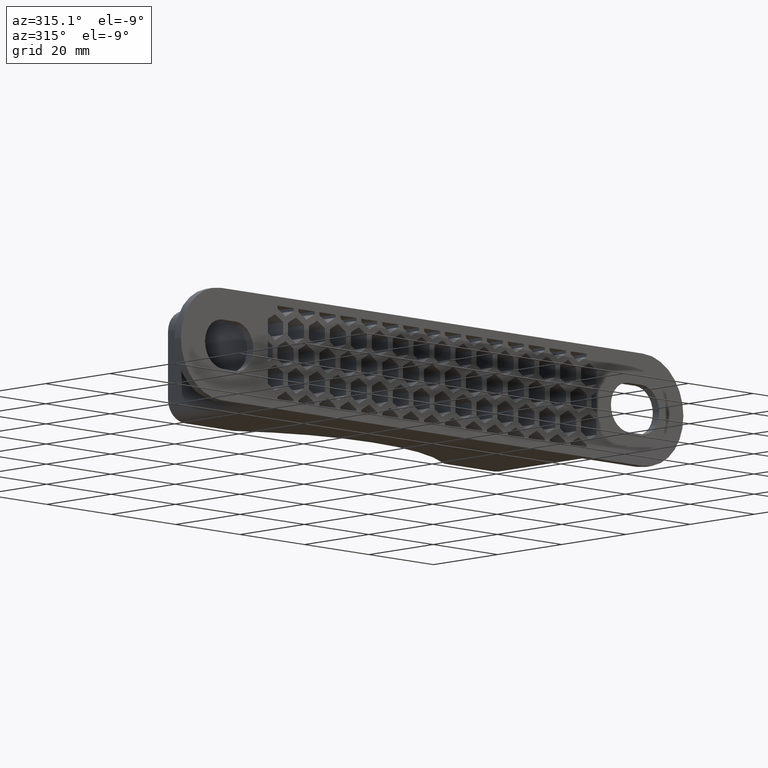
[diagram: clean part render]
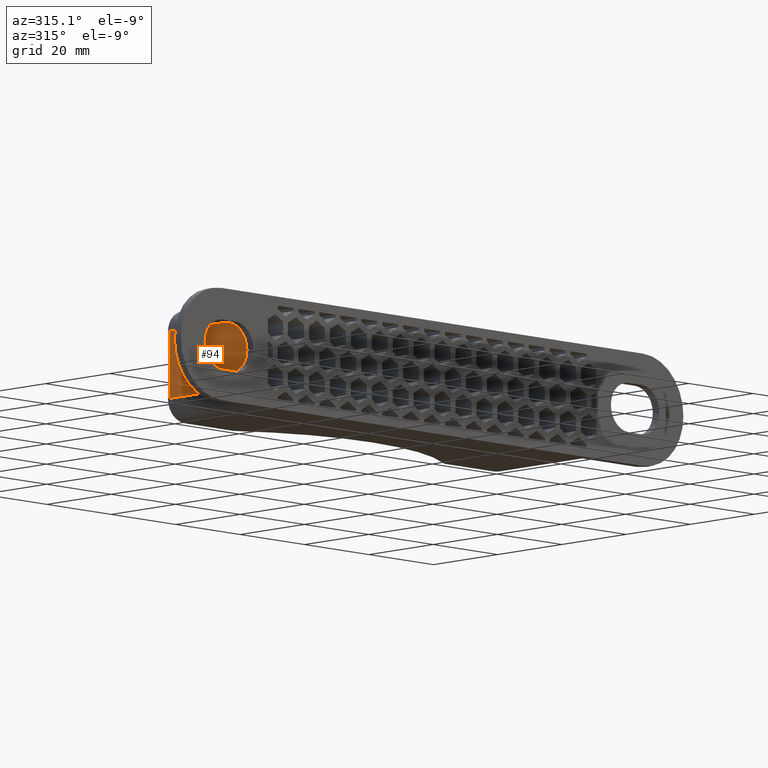
[diagram: same view with one face highlighted and labeled with its STEP entity id]
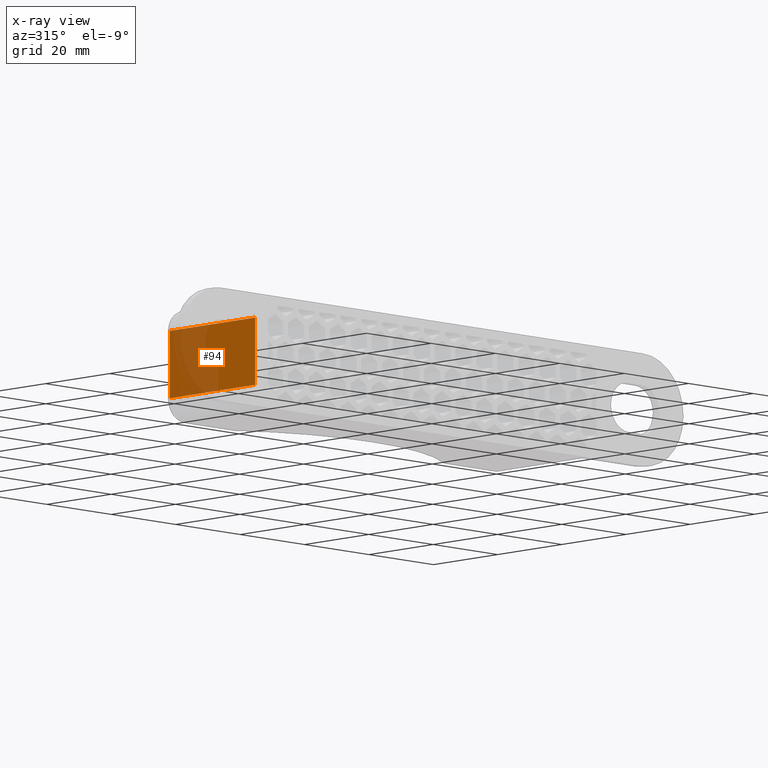
[diagram: x-ray of the same camera — body ghosted, the highlighted face saturated]
A machine part, auxiliary view. The second image highlights one B-rep face of the part: STEP entity #94.
The next image is the same camera in x-ray: the body ghosted, the highlighted face saturated — about 36% of this face is hidden behind the body in this view.
In plain terms, the highlighted planar face has unit normal (-1, 0, 0).
Its self-contained STEP definition (entity closure, byte-faithful):
#94 = ADVANCED_FACE( '', ( #810 ), #811, .T. );
#810 = FACE_OUTER_BOUND( '', #2118, .T. );
#811 = PLANE( '', #2119 );
#2118 = EDGE_LOOP( '', ( #3933, #3934, #3935, #3936 ) );
#2119 = AXIS2_PLACEMENT_3D( '', #3937, #3938, #3939 );
#3933 = ORIENTED_EDGE( '', *, *, #8777, .T. );
#3934 = ORIENTED_EDGE( '', *, *, #8750, .T. );
#3935 = ORIENTED_EDGE( '', *, *, #8778, .T. );
#3936 = ORIENTED_EDGE( '', *, *, #8779, .T. );
#3937 = CARTESIAN_POINT( '', ( -53.0000000000000, 30.0000000000000, -12.5000000000000 ) );
#3938 = DIRECTION( '', ( -1.00000000000000, 6.93889390390723E-017, 0.000000000000000 ) );
#3939 = DIRECTION( '', ( 6.93889390390723E-017, 1.00000000000000, 0.000000000000000 ) );
#8750 = EDGE_CURVE( '', #10801, #10806, #10808, .F. );
#8777 = EDGE_CURVE( '', #10853, #10801, #10854, .F. );
#8778 = EDGE_CURVE( '', #10806, #10855, #10856, .T. );
#8779 = EDGE_CURVE( '', #10855, #10853, #10857, .T. );
#10801 = VERTEX_POINT( '', #13875 );
#10806 = VERTEX_POINT( '', #13881 );
#10808 = LINE( '', #13883, #13884 );
#10853 = VERTEX_POINT( '', #13941 );
#10854 = LINE( '', #13942, #13943 );
#10855 = VERTEX_POINT( '', #13944 );
#10856 = LINE( '', #13945, #13946 );
#10857 = LINE( '', #13947, #13948 );
#13875 = CARTESIAN_POINT( '', ( -53.0000000000000, 28.5000000000000, 7.50000000000000 ) );
#13881 = CARTESIAN_POINT( '', ( -53.0000000000000, 28.5000000000000, -7.50000000000000 ) );
#13883 = CARTESIAN_POINT( '', ( -53.0000000000000, 28.5000000000000, -12.5000000000000 ) );
#13884 = VECTOR( '', #16798, 1000.00000000000 );
#13941 = CARTESIAN_POINT( '', ( -53.0000000000000, 1.99999999999999, 7.49999999999999 ) );
#13942 = CARTESIAN_POINT( '', ( -53.0000000000000, 30.0000000000000, 7.50000000000000 ) );
#13943 = VECTOR( '', #16853, 1000.00000000000 );
#13944 = CARTESIAN_POINT( '', ( -53.0000000000000, 1.99999999999999, -7.50000000000000 ) );
#13945 = CARTESIAN_POINT( '', ( -53.0000000000000, 30.0000000000000, -7.50000000000000 ) );
#13946 = VECTOR( '', #16854, 1000.00000000000 );
#13947 = CARTESIAN_POINT( '', ( -53.0000000000000, 1.99999999999999, -12.5000000000000 ) );
#13948 = VECTOR( '', #16855, 1000.00000000000 );
#16798 = DIRECTION( '', ( 0.000000000000000, 0.000000000000000, 1.00000000000000 ) );
#16853 = DIRECTION( '', ( -6.93889390390723E-017, -1.00000000000000, 0.000000000000000 ) );
#16854 = DIRECTION( '', ( -6.93889390390723E-017, -1.00000000000000, 0.000000000000000 ) );
#16855 = DIRECTION( '', ( 0.000000000000000, 0.000000000000000, 1.00000000000000 ) );